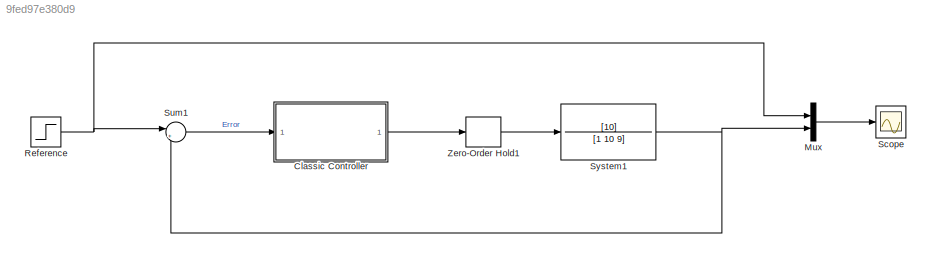
MODEL slx_9fed97e380d9
KIND model
CONFIG AbsTol = auto
CONFIG EnableMultiTasking = off
CONFIG FixedStep = auto
CONFIG MaxStep = auto
CONFIG MinStep = auto
CONFIG RelTol = 1e-3
CONFIG SampleTimeConstraint = Unconstrained
CONFIG Solver = VariableStepAuto
CONFIG SolverName = VariableStepAuto
CONFIG StartTime = 0.0
CONFIG StopTime = 10.0
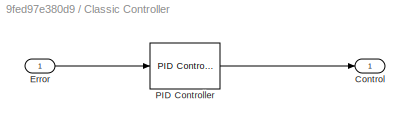
BLOCK [SubSystem] Classic Controller
  Ports = [1, 1]
  RequestExecContextInheritance = off
BLOCK [Outport] Classic Controller/Control
  IconDisplay = Port number
BLOCK [Inport] Classic Controller/Error
  IconDisplay = Port number
BLOCK [Reference] Classic Controller/PID Controller  REF=simulink/Continuous/PID Controller
  Ports = [1, 1]
  SourceBlock = simulink/Continuous/PID Controller
  SourceProductBaseCode = SL
  SourceProductName = Simulink
  SourceType = PID 1dof
BLOCK [Mux] Mux
  DisplayOption = bar
  Inputs = 2
  Ports = [2, 1]
BLOCK [Step] Reference
  SampleTime = 0.01
  Time = 0
BLOCK [Scope] Scope
  Floating = off
  NumInputPorts = 1
  Ports = [1]
  ScopeSpecificationString = Simulink.scopes.TimeScopeBlockCfg('CurrentConfiguration', extmgr.ConfigurationSet(extmgr.Configuration('Core','General UI',true),extmgr.Configuration('Core','Source UI',true),extmgr.Configuration('Sources','WiredSimulink',true,'DataLogging',true),extmgr.Configuration('Visuals','Time Domain',true,'SerializedDisplays',{struct('MinYLimReal','0','MaxYLimReal','1.1','YLabelReal','','MinYLimMag','0.0000...<+1749ch>
BLOCK [Sum] Sum1
  IconShape = round
  InputSameDT = off
  Inputs = |+-
  OutDataTypeStr = Inherit: Inherit via internal rule
  Ports = [2, 1]
  SaturateOnIntegerOverflow = off
BLOCK [TransferFcn] System1
  Denominator = [1 10 9]
  Numerator = [10]
BLOCK [ZeroOrderHold] Zero-Order Hold1
  SampleTime = -1
LINE Classic Controller/Error:1 -> Classic Controller/PID Controller:1
LINE Classic Controller/PID Controller:1 -> Classic Controller/Control:1
LINE Classic Controller:1 -> Zero-Order Hold1:1
LINE Mux:1 -> Scope:1
NET Reference:1 -> Mux:1, Sum1:1
LINE Sum1:1 -> Classic Controller:1
NET System1:1 -> Mux:2, Sum1:2
LINE Zero-Order Hold1:1 -> System1:1
note: NET lines group one-source signal fan-out (src -> all destinations, sorted); 1:1 wires keep LINE
